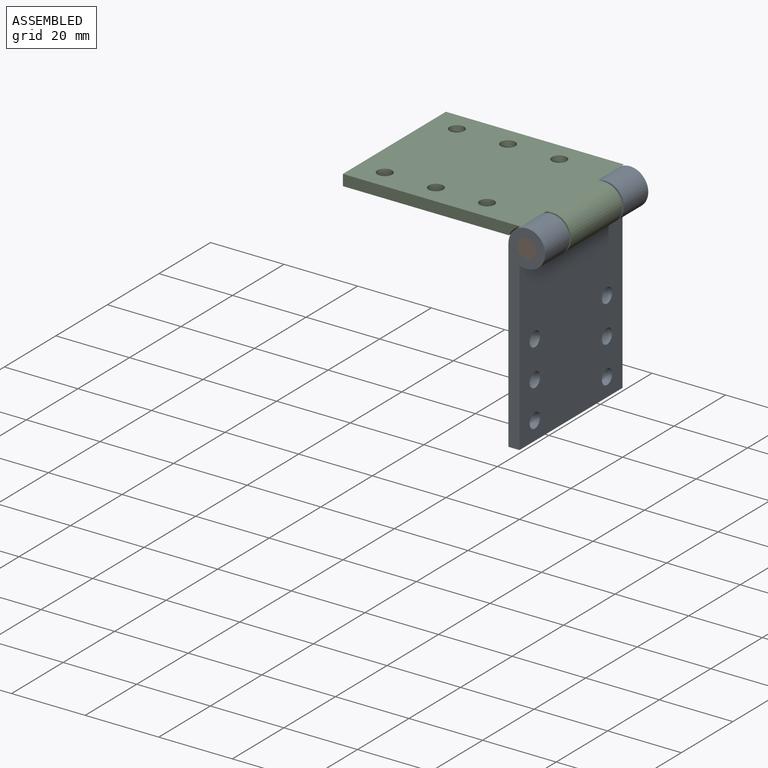
[diagram: assembled view]
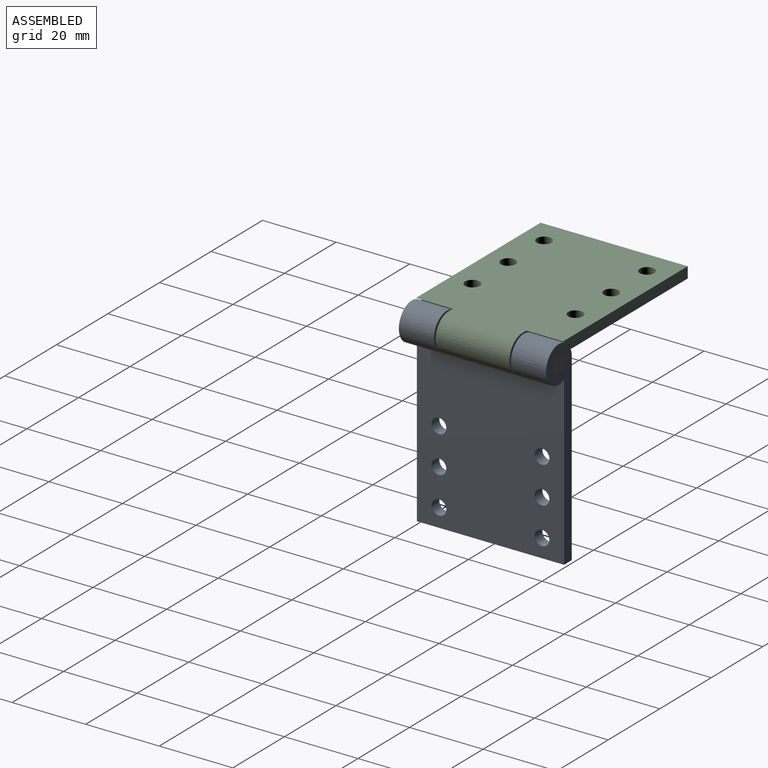
[diagram: assembled view, second angle]
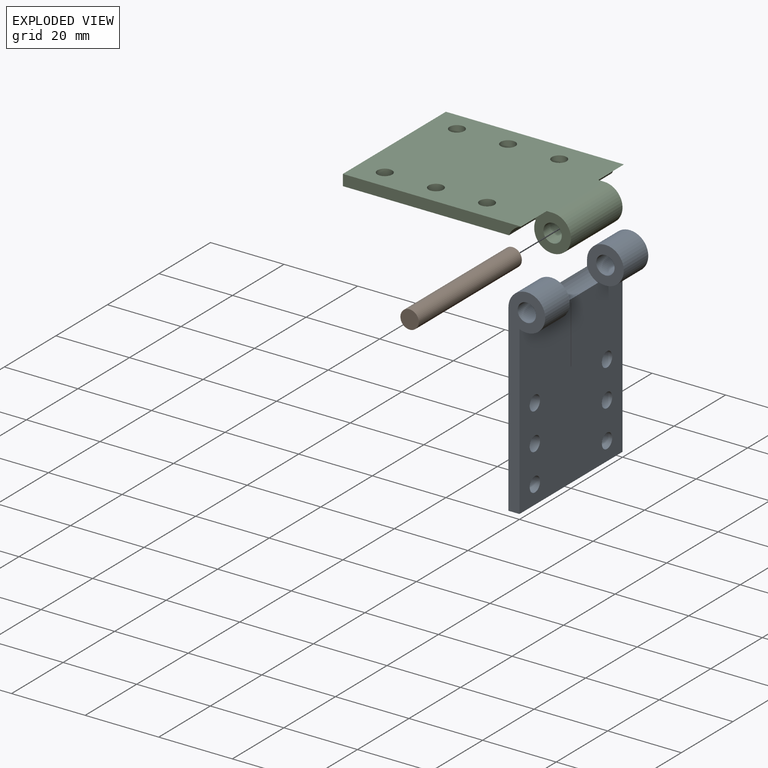
[diagram: exploded view]
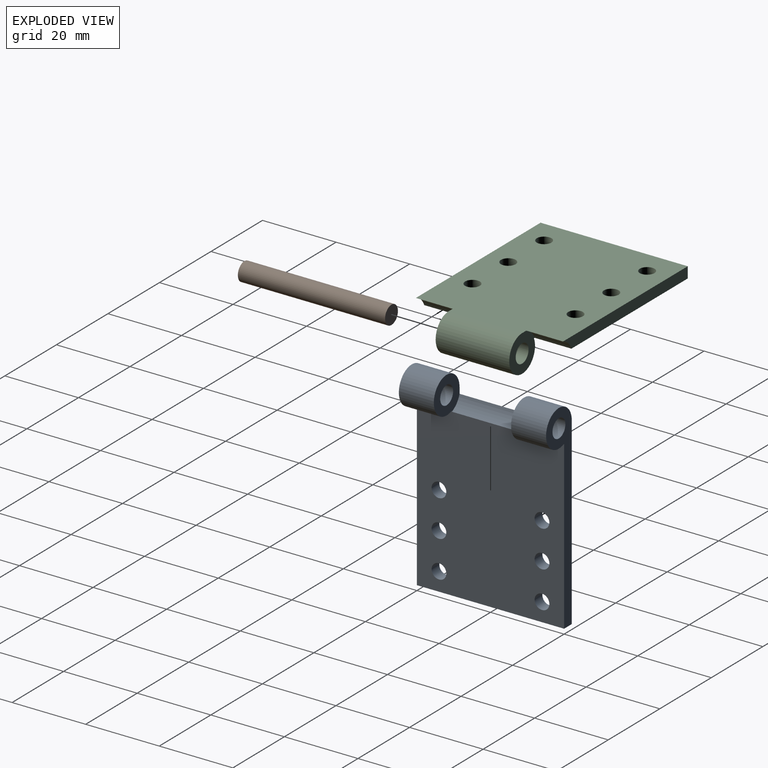
[diagram: exploded view, second angle]
ASSEMBLY  parts=3 mates=2
PART A: 18 faces, bbox 55x40x10 mm
  f0: plane 45.42x40mm, normal (0,0,1), area 1735.6mm2, adj f1,f4,f6,f7,f8,f9,f10,f11
  f1: cylinder r=5mm len=10mm, axis (0,1,0), area 243.4mm2, adj f0,f2,f8,f16
  f2: plane 50x40mm, normal (0,0,-1), area 1891mm2, adj f1,f4,f6,f7,f8,f9,f10,f11
  f3: cylinder r=2.5mm len=9.5mm, axis (0,1,0), area 149.2mm2, adj f8,f16
  f4: cylinder r=5mm len=10mm, axis (0,1,0), area 243.4mm2, adj f0,f2,f7,f17
  f5: cylinder r=2.5mm len=9.5mm, axis (0,1,0), area 149.2mm2, adj f7,f17
  f6: plane 40x3mm, normal (1,0,0), area 120mm2, adj f0,f2,f7,f8
  f7: plane 55x10mm, normal (0,-1,0), area 199mm2, adj f0,f2,f4,f5,f6
  f8: plane 55x10mm, normal (0,1,0), area 199mm2, adj f0,f1,f2,f3,f6
  f9: cylinder r=2mm len=4mm, axis (0,0,1), area 37.7mm2, adj f0,f2
  f10: cylinder r=2mm len=4mm, axis (0,0,1), area 37.7mm2, adj f0,f2
  f11: cylinder r=2mm len=4mm, axis (0,0,1), area 37.7mm2, adj f0,f2
  f12: cylinder r=2mm len=4mm, axis (0,0,1), area 37.7mm2, adj f0,f2
  f13: cylinder r=2mm len=4mm, axis (0,0,1), area 37.7mm2, adj f0,f2
  f14: cylinder r=2mm len=4mm, axis (0,0,1), area 37.7mm2, adj f0,f2
  f15: cylinder r=5.25mm len=21mm, axis (0,-1,0), area 95.9mm2, adj f0,f2,f16,f17
  f16: plane 10x10mm, normal (0,-1,0), area 60.1mm2, adj f0,f1,f2,f3,f15
  f17: plane 10x10mm, normal (0,1,0), area 60.1mm2, adj f0,f2,f4,f5,f15
PART B: 3 faces, bbox 5x40x5 mm
  f0: cylinder r=2.5mm len=40mm, axis (0,1,0), area 628.3mm2, adj f1,f2
  f1: plane 5x5mm, normal (0,-1,0), area 19.6mm2, adj f0
  f2: plane 5x5mm, normal (0,1,0), area 19.6mm2, adj f0
PART C: 17 faces, bbox 55x40x10 mm
  f0: cylinder r=5mm len=20mm, axis (0,1,0), area 512.4mm2, adj f3,f4,f13,f15
  f1: cylinder r=2.5mm len=20mm, axis (0,1,0), area 314.2mm2, adj f13,f15
  f2: plane 48.4x3mm, normal (0,1,0), area 138.9mm2, adj f3,f4,f5,f16
  f3: plane 45.42x40mm, normal (0,0,1), area 1735.9mm2, adj f0,f2,f5,f6,f7,f8,f9,f10
  f4: plane 50x40mm, normal (0,0,-1), area 1892.6mm2, adj f0,f2,f5,f6,f7,f8,f9,f10
  f5: plane 40x3mm, normal (1,0,0), area 120mm2, adj f2,f3,f4,f6
  f6: plane 48.4x3mm, normal (0,-1,0), area 138.9mm2, adj f3,f4,f5,f14
  f7: cylinder r=2mm len=4mm, axis (0,0,1), area 37.7mm2, adj f3,f4
  f8: cylinder r=2mm len=4mm, axis (0,0,1), area 37.7mm2, adj f3,f4
  f9: cylinder r=2mm len=4mm, axis (0,0,1), area 37.7mm2, adj f3,f4
  f10: cylinder r=2mm len=4mm, axis (0,0,1), area 37.7mm2, adj f3,f4
  f11: cylinder r=2mm len=4mm, axis (0,0,1), area 37.7mm2, adj f3,f4
  f12: cylinder r=2mm len=4mm, axis (0,0,1), area 37.7mm2, adj f3,f4
  f13: plane 10x10mm, normal (0,-1,0), area 60.1mm2, adj f0,f1,f3,f4,f14
  f14: cylinder r=5.25mm len=10mm, axis (0,-1,0), area 45.7mm2, adj f3,f4,f6,f13
  f15: plane 10x10mm, normal (0,1,0), area 60.1mm2, adj f0,f1,f3,f4,f16
  f16: cylinder r=5.25mm len=10mm, axis (0,1,0), area 45.7mm2, adj f2,f3,f4,f15
PLACE A rot(axis=(0,1,0),90deg) t=(2,173,50)mm
PLACE B rot(axis=(0,1,0),90deg) t=(-17,173,50)mm
PLACE C rot(axis=(0,1,0),180deg) t=(2,173,110)mm
MATE revolute C.f1 <-> A.f3  axis (0,-1,0) through (2,-30,50)mm
MATE fastened B.f0 <-> A.f1  axis (0,-1,0) through (2,-40,50)mm
